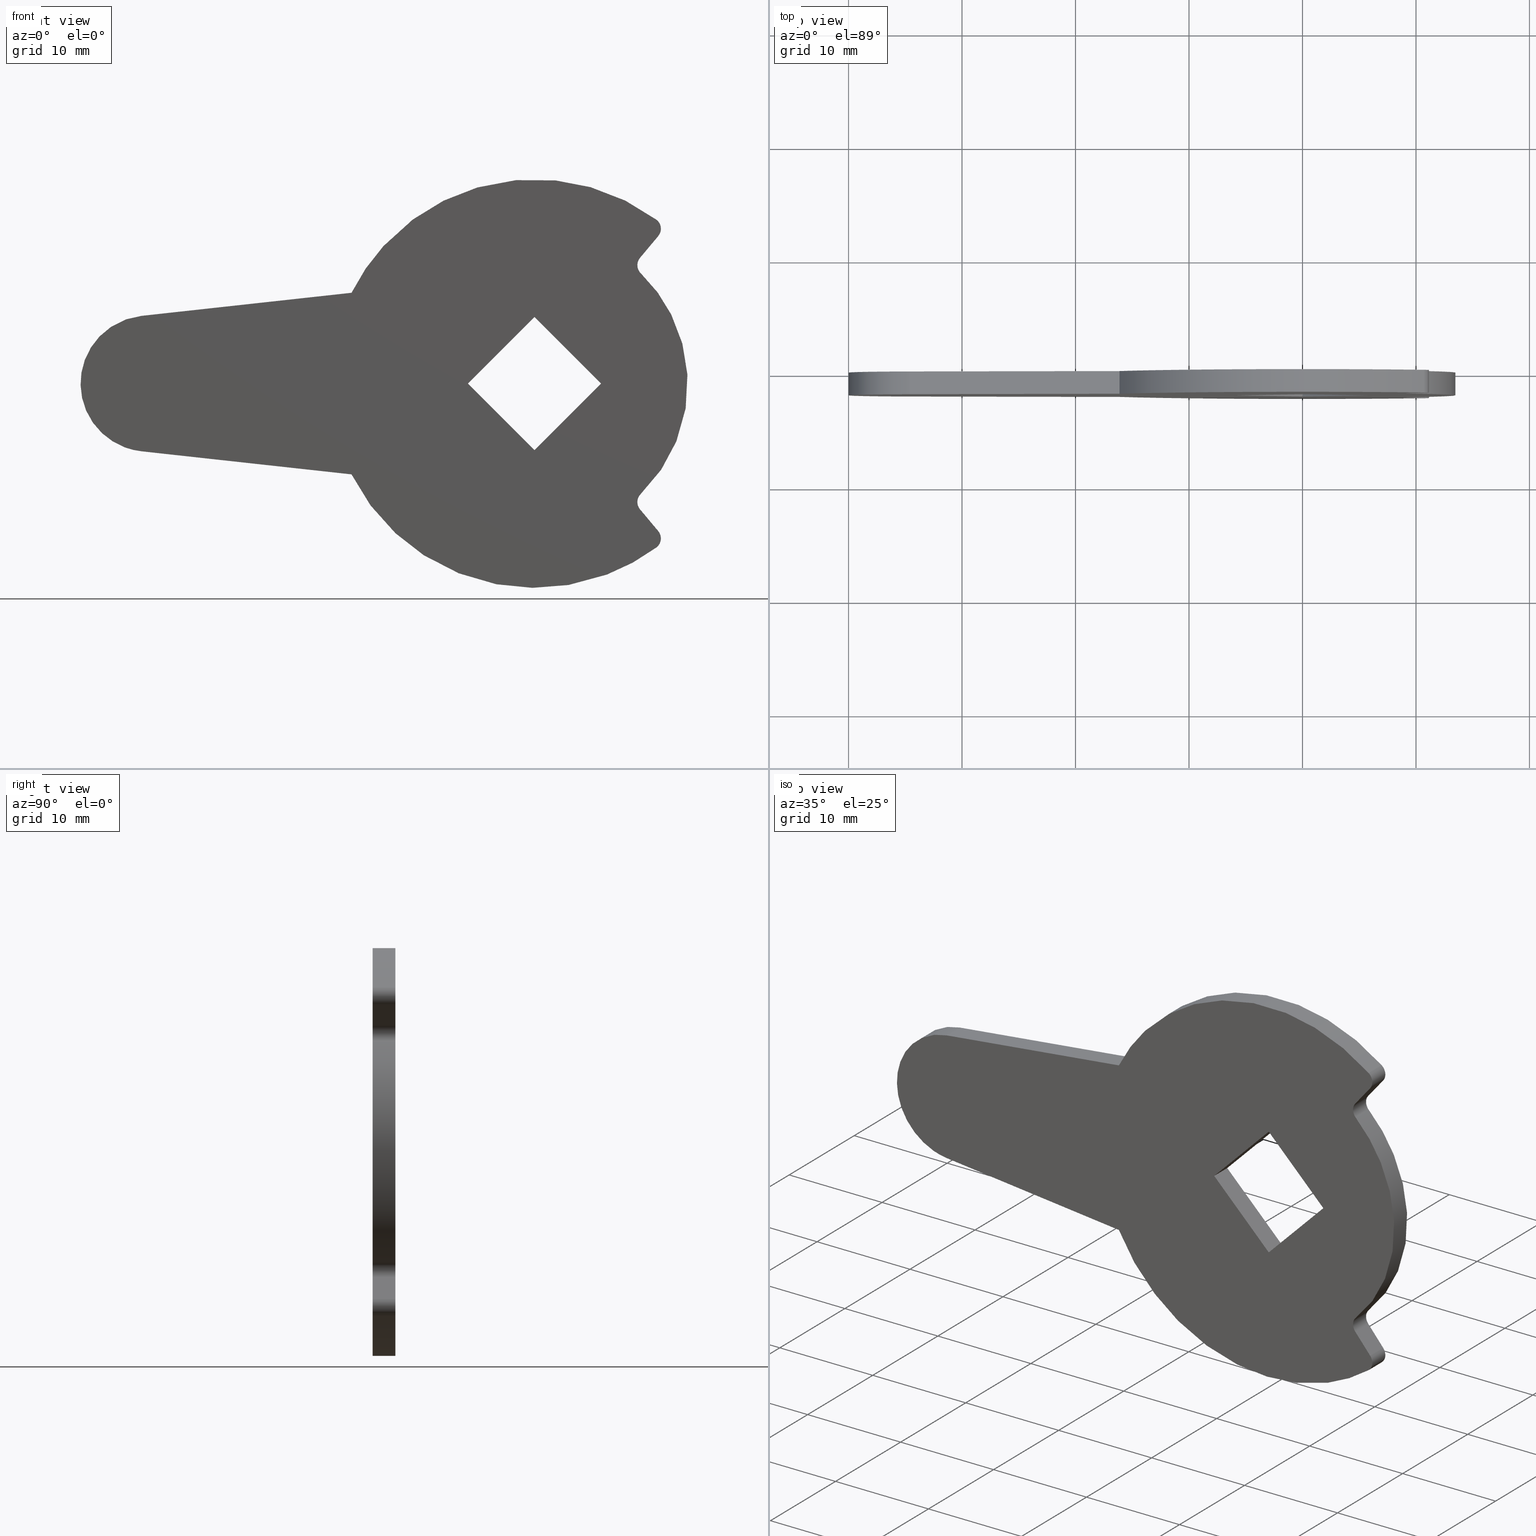
[diagram: canonical four-view strip — front | top / right | iso, engineering-drawing reading convention]
A machine part, canonical four-view strip (front | top / right | iso — engineering-drawing reading convention). The complete STEP part file that produces these views, byte-faithful:
ISO-10303-21;
HEADER;
/****************************************************************
 * Generated by software with PDE/Lib inside                    *
 * PDElib Version 4.4.1-0003, patched  Thursday August 19 11:58 *
 * International Technegroup Inc. (www.iti-oh.com)              *
 ****************************************************************/
FILE_DESCRIPTION((''),'2;1');
FILE_NAME('','2005-10-12T14:38:34',(''),(''),'','CADfix','');
FILE_SCHEMA(('AUTOMOTIVE_DESIGN'));
ENDSEC;
DATA;
#5=APPLICATION_CONTEXT('automotive design');
#6=APPLICATION_PROTOCOL_DEFINITION('Draft International Standard','automotive_design',1998,#5);
#7=PRODUCT_CONTEXT('None',#5,'mechanical');
#8=PRODUCT('cam','','None',(#7));
#9=PRODUCT_RELATED_PRODUCT_CATEGORY('part','description',(#8));
#10=PRODUCT_DEFINITION_FORMATION('None','None',#8);
#11=PRODUCT_DEFINITION_CONTEXT('part definition',#5,'design');
#12=PRODUCT_DEFINITION('None','None',#10,#11);
#18=(NAMED_UNIT(*)PLANE_ANGLE_UNIT()SI_UNIT($,.RADIAN.));
#19=DIMENSIONAL_EXPONENTS(0.0,0.0,0.0,0.0,0.0,0.0,0.0);
#20=PLANE_ANGLE_MEASURE_WITH_UNIT(PLANE_ANGLE_MEASURE(0.017453292500000),#18);
#24=(CONVERSION_BASED_UNIT('DEGREE',#20)NAMED_UNIT(#19)PLANE_ANGLE_UNIT());
#28=(NAMED_UNIT(*)SI_UNIT($,.STERADIAN.)SOLID_ANGLE_UNIT());
#32=(LENGTH_UNIT()NAMED_UNIT(*)SI_UNIT(.MILLI.,.METRE.));
#34=UNCERTAINTY_MEASURE_WITH_UNIT(LENGTH_MEASURE(0.001000000000000),#32,'DISTANCE_ACCURACY_VALUE','');
#36=(GEOMETRIC_REPRESENTATION_CONTEXT(3)GLOBAL_UNCERTAINTY_ASSIGNED_CONTEXT((#34))GLOBAL_UNIT_ASSIGNED_CONTEXT((#24,#28,#32))REPRESENTATION_CONTEXT('None','None'));
#37=AXIS2_PLACEMENT_3D('',#38,#39,#40);
#38=CARTESIAN_POINT('',(0.0,0.0,0.0));
#39=DIRECTION('',(0.0,0.0,1.0));
#40=DIRECTION('',(1.0,0.0,0.0));
#41=ADVANCED_BREP_SHAPE_REPRESENTATION('',(#37,#773),#36);
#42=PRODUCT_DEFINITION_SHAPE('','',#12);
#43=SHAPE_DEFINITION_REPRESENTATION(#42,#41);
#44=CARTESIAN_POINT('',(-42.672116572253337,0.0,19.798160946943760));
#45=CARTESIAN_POINT('',(16.172309228567329,0.0,19.798160946943760));
#46=CARTESIAN_POINT('',(-42.672116572253337,0.0,-19.798180419614450));
#47=CARTESIAN_POINT('',(16.172309228567329,0.0,-19.798180419614450));
#48=B_SPLINE_SURFACE_WITH_KNOTS('',1,1,((#44,#46),(#45,#47)),.UNSPECIFIED.,.F.,.F.,.U.,(2,2),(2,2),(0.0,58.844425800820673),(0.0,39.596341366558207),.UNSPECIFIED.);
#49=CARTESIAN_POINT('',(-16.124516390019249,0.0,7.999998199249859));
#50=VERTEX_POINT('',#49);
#51=CARTESIAN_POINT('',(-34.633145301659049,0.0,5.966479173588591));
#52=VERTEX_POINT('',#51);
#53=CARTESIAN_POINT('',(-16.124516390019249,0.0,7.999998199249859));
#54=CARTESIAN_POINT('',(-34.633145301659049,0.0,5.966479173588591));
#55=QUASI_UNIFORM_CURVE('',1,(#53,#54),.UNSPECIFIED.,.F.,.U.);
#56=EDGE_CURVE('',#50,#52,#55,.T.);
#57=ORIENTED_EDGE('',*,*,#56,.F.);
#58=CARTESIAN_POINT('',(10.739072857427560,0.0,14.445526761287001));
#59=VERTEX_POINT('',#58);
#60=CARTESIAN_POINT('',(10.739072857427580,0.0,14.445526761287010));
#61=CARTESIAN_POINT('',(3.984586888391909,0.0,19.466919151968014));
#62=CARTESIAN_POINT('',(-4.199630048120307,0.0,17.503235016676548));
#63=CARTESIAN_POINT('',(-12.383846984632507,0.0,15.539550881385084));
#64=CARTESIAN_POINT('',(-16.124516390019242,0.0,7.999998199249866));
#72=(BOUNDED_CURVE()B_SPLINE_CURVE(2,(#60,#61,#62,#63,#64),.UNSPECIFIED.,.F.,.U.)B_SPLINE_CURVE_WITH_KNOTS((3,2,3),(0.0,0.500000000000000,1.0),.UNSPECIFIED.)CURVE()GEOMETRIC_REPRESENTATION_ITEM()RATIONAL_B_SPLINE_CURVE((1.0,0.905864952288435,1.0,0.905864952288435,1.0))REPRESENTATION_ITEM(''));
#73=EDGE_CURVE('',#59,#50,#72,.T.);
#74=ORIENTED_EDGE('',*,*,#73,.F.);
#75=CARTESIAN_POINT('',(10.903888410565161,0.0,12.994704011845860));
#76=VERTEX_POINT('',#75);
#77=CARTESIAN_POINT('',(10.903888410565150,0.0,12.994704011845871));
#78=CARTESIAN_POINT('',(11.185033449875226,0.0,13.324930315240922));
#79=CARTESIAN_POINT('',(11.136079863430229,0.0,13.755854311969820));
#80=CARTESIAN_POINT('',(11.087126276985247,0.0,14.186778308698713));
#81=CARTESIAN_POINT('',(10.739072857427569,0.0,14.445526761287020));
#89=(BOUNDED_CURVE()B_SPLINE_CURVE(2,(#77,#78,#79,#80,#81),.UNSPECIFIED.,.F.,.U.)B_SPLINE_CURVE_WITH_KNOTS((3,2,3),(0.0,0.500000000000000,1.0),.UNSPECIFIED.)CURVE()GEOMETRIC_REPRESENTATION_ITEM()RATIONAL_B_SPLINE_CURVE((1.0,0.917438250673473,1.0,0.917438250673473,1.0))REPRESENTATION_ITEM(''));
#90=EDGE_CURVE('',#76,#59,#89,.T.);
#91=ORIENTED_EDGE('',*,*,#90,.F.);
#92=CARTESIAN_POINT('',(9.302911589461571,0.0,11.086695988185660));
#93=VERTEX_POINT('',#92);
#94=CARTESIAN_POINT('',(9.302911589461571,0.0,11.086695988185660));
#95=CARTESIAN_POINT('',(10.903888410565161,0.0,12.994704011845860));
#96=QUASI_UNIFORM_CURVE('',1,(#94,#95),.UNSPECIFIED.,.F.,.U.);
#97=EDGE_CURVE('',#93,#76,#96,.T.);
#98=ORIENTED_EDGE('',*,*,#97,.F.);
#99=CARTESIAN_POINT('',(9.370201414459581,0.0,9.718512161400970));
#100=VERTEX_POINT('',#99);
#101=CARTESIAN_POINT('',(9.302911589461564,0.0,11.086695988185671));
#102=CARTESIAN_POINT('',(8.693486324257897,0.0,10.370976687543207));
#103=CARTESIAN_POINT('',(9.370201414459581,0.0,9.718512161400970));
#111=(BOUNDED_CURVE()B_SPLINE_CURVE(2,(#101,#102,#103),.UNSPECIFIED.,.F.,.U.)CURVE()GEOMETRIC_REPRESENTATION_ITEM()QUASI_UNIFORM_CURVE()RATIONAL_B_SPLINE_CURVE((1.0,0.728615029618787,1.0))REPRESENTATION_ITEM(''));
#112=EDGE_CURVE('',#93,#100,#111,.T.);
#113=ORIENTED_EDGE('',*,*,#112,.T.);
#114=CARTESIAN_POINT('',(9.370232998813620,0.0,-9.718481708829620));
#115=VERTEX_POINT('',#114);
#116=CARTESIAN_POINT('',(9.370232998813620,0.0,-9.718481708829620));
#117=CARTESIAN_POINT('',(13.500002456554776,0.0,-5.736679563119544));
#118=CARTESIAN_POINT('',(13.499993134639370,0.0,0.000021937009793));
#119=CARTESIAN_POINT('',(13.499983812723970,0.0,5.736723437139132));
#120=CARTESIAN_POINT('',(9.370201414459576,0.0,9.718512161400966));
#128=(BOUNDED_CURVE()B_SPLINE_CURVE(2,(#116,#117,#118,#119,#120),.UNSPECIFIED.,.F.,.U.)B_SPLINE_CURVE_WITH_KNOTS((3,2,3),(0.0,0.500000000000000,1.0),.UNSPECIFIED.)CURVE()GEOMETRIC_REPRESENTATION_ITEM()RATIONAL_B_SPLINE_CURVE((1.0,0.920350869292249,1.0,0.920350869292249,1.0))REPRESENTATION_ITEM(''));
#129=EDGE_CURVE('',#115,#100,#128,.T.);
#130=ORIENTED_EDGE('',*,*,#129,.F.);
#131=CARTESIAN_POINT('',(9.302911589459120,0.0,-11.086695988182900));
#132=VERTEX_POINT('',#131);
#133=CARTESIAN_POINT('',(9.370232998813631,0.0,-9.718481708829630));
#134=CARTESIAN_POINT('',(8.693520258583256,0.0,-10.370948212989592));
#135=CARTESIAN_POINT('',(9.302911589459129,0.0,-11.086695988182891));
#143=(BOUNDED_CURVE()B_SPLINE_CURVE(2,(#133,#134,#135),.UNSPECIFIED.,.F.,.U.)CURVE()GEOMETRIC_REPRESENTATION_ITEM()QUASI_UNIFORM_CURVE()RATIONAL_B_SPLINE_CURVE((1.0,0.728632280257199,1.0))REPRESENTATION_ITEM(''));
#144=EDGE_CURVE('',#115,#132,#143,.T.);
#145=ORIENTED_EDGE('',*,*,#144,.T.);
#146=CARTESIAN_POINT('',(10.903888410552099,0.0,-12.994704011830500));
#147=VERTEX_POINT('',#146);
#148=CARTESIAN_POINT('',(10.903888410552099,0.0,-12.994704011830500));
#149=CARTESIAN_POINT('',(9.302911589459120,0.0,-11.086695988182900));
#150=QUASI_UNIFORM_CURVE('',1,(#148,#149),.UNSPECIFIED.,.F.,.U.);
#151=EDGE_CURVE('',#147,#132,#150,.T.);
#152=ORIENTED_EDGE('',*,*,#151,.F.);
#153=CARTESIAN_POINT('',(10.739112776660621,0.0,-14.445497084531420));
#154=VERTEX_POINT('',#153);
#155=CARTESIAN_POINT('',(10.739112776660621,0.0,-14.445497084531430));
#156=CARTESIAN_POINT('',(11.087159702476013,0.0,-14.186750629950188));
#157=CARTESIAN_POINT('',(11.136101848850220,0.0,-13.755831778382770));
#158=CARTESIAN_POINT('',(11.185043995224420,0.0,-13.324912926815346));
#159=CARTESIAN_POINT('',(10.903888410552110,0.0,-12.994704011830491));
#167=(BOUNDED_CURVE()B_SPLINE_CURVE(2,(#155,#156,#157,#158,#159),.UNSPECIFIED.,.F.,.U.)B_SPLINE_CURVE_WITH_KNOTS((3,2,3),(0.0,0.500000000000000,1.0),.UNSPECIFIED.)CURVE()GEOMETRIC_REPRESENTATION_ITEM()RATIONAL_B_SPLINE_CURVE((1.0,0.917434344498665,1.0,0.917434344498665,1.0))REPRESENTATION_ITEM(''));
#168=EDGE_CURVE('',#154,#147,#167,.T.);
#169=ORIENTED_EDGE('',*,*,#168,.F.);
#170=CARTESIAN_POINT('',(-16.124516390019249,0.0,-7.999998199249848));
#171=VERTEX_POINT('',#170);
#172=CARTESIAN_POINT('',(-16.124516390019249,0.0,-7.999998199249840));
#173=CARTESIAN_POINT('',(-12.383854566696858,0.0,-15.539582422374766));
#174=CARTESIAN_POINT('',(-4.199610718877589,0.0,-17.503261055320671));
#175=CARTESIAN_POINT('',(3.984633128941676,0.0,-19.466939688266585));
#176=CARTESIAN_POINT('',(10.739112776660621,0.0,-14.445497084531439));
#184=(BOUNDED_CURVE()B_SPLINE_CURVE(2,(#172,#173,#174,#175,#176),.UNSPECIFIED.,.F.,.U.)B_SPLINE_CURVE_WITH_KNOTS((3,2,3),(0.0,0.500000000000000,1.0),.UNSPECIFIED.)CURVE()GEOMETRIC_REPRESENTATION_ITEM()RATIONAL_B_SPLINE_CURVE((1.0,0.905864136016763,1.0,0.905864136016763,1.0))REPRESENTATION_ITEM(''));
#185=EDGE_CURVE('',#171,#154,#184,.T.);
#186=ORIENTED_EDGE('',*,*,#185,.F.);
#187=CARTESIAN_POINT('',(-34.633145301716652,0.0,-5.966479173582481));
#188=VERTEX_POINT('',#187);
#189=CARTESIAN_POINT('',(-34.633145301716652,0.0,-5.966479173582481));
#190=CARTESIAN_POINT('',(-16.124516390019249,0.0,-7.999998199249848));
#191=QUASI_UNIFORM_CURVE('',1,(#189,#190),.UNSPECIFIED.,.F.,.U.);
#192=EDGE_CURVE('',#188,#171,#191,.T.);
#193=ORIENTED_EDGE('',*,*,#192,.F.);
#194=CARTESIAN_POINT('',(-34.633145301659049,0.0,5.966479173588592));
#195=CARTESIAN_POINT('',(-39.999799999973945,0.0,5.396805595601411));
#196=CARTESIAN_POINT('',(-39.999799999999993,0.0,2.896253E-011));
#197=CARTESIAN_POINT('',(-39.999800000026049,0.0,-5.396805595543485));
#198=CARTESIAN_POINT('',(-34.633145301716652,0.0,-5.966479173582478));
#206=(BOUNDED_CURVE()B_SPLINE_CURVE(2,(#194,#195,#196,#197,#198),.UNSPECIFIED.,.F.,.U.)B_SPLINE_CURVE_WITH_KNOTS((3,2,3),(0.0,0.500000000000000,1.0),.UNSPECIFIED.)CURVE()GEOMETRIC_REPRESENTATION_ITEM()RATIONAL_B_SPLINE_CURVE((1.0,0.743490938169830,1.0,0.743490938169830,1.0))REPRESENTATION_ITEM(''));
#207=EDGE_CURVE('',#52,#188,#206,.T.);
#208=ORIENTED_EDGE('',*,*,#207,.F.);
#209=EDGE_LOOP('',(#57,#74,#91,#98,#113,#130,#145,#152,#169,#186,#193,#208));
#210=FACE_OUTER_BOUND('',#209,.T.);
#211=CARTESIAN_POINT('',(5.868999999999900,0.0,0.0));
#212=VERTEX_POINT('',#211);
#213=CARTESIAN_POINT('',(0.000100000000003,0.0,-5.869000000000000));
#214=VERTEX_POINT('',#213);
#215=CARTESIAN_POINT('',(5.868999999999900,0.0,0.0));
#216=CARTESIAN_POINT('',(0.000100000000003,0.0,-5.869000000000000));
#217=QUASI_UNIFORM_CURVE('',1,(#215,#216),.UNSPECIFIED.,.F.,.U.);
#218=EDGE_CURVE('',#212,#214,#217,.T.);
#219=ORIENTED_EDGE('',*,*,#218,.F.);
#220=CARTESIAN_POINT('',(0.000100000000003,0.0,5.868999999999900));
#221=VERTEX_POINT('',#220);
#222=CARTESIAN_POINT('',(0.000100000000003,0.0,5.868999999999900));
#223=CARTESIAN_POINT('',(5.868999999999900,0.0,0.0));
#224=QUASI_UNIFORM_CURVE('',1,(#222,#223),.UNSPECIFIED.,.F.,.U.);
#225=EDGE_CURVE('',#221,#212,#224,.T.);
#226=ORIENTED_EDGE('',*,*,#225,.F.);
#227=CARTESIAN_POINT('',(-5.868900000000000,0.0,0.0));
#228=VERTEX_POINT('',#227);
#229=CARTESIAN_POINT('',(-5.868900000000000,0.0,0.0));
#230=CARTESIAN_POINT('',(0.000100000000003,0.0,5.868999999999900));
#231=QUASI_UNIFORM_CURVE('',1,(#229,#230),.UNSPECIFIED.,.F.,.U.);
#232=EDGE_CURVE('',#228,#221,#231,.T.);
#233=ORIENTED_EDGE('',*,*,#232,.F.);
#234=CARTESIAN_POINT('',(0.000100000000003,0.0,-5.869000000000000));
#235=CARTESIAN_POINT('',(-5.868900000000000,0.0,0.0));
#236=QUASI_UNIFORM_CURVE('',1,(#234,#235),.UNSPECIFIED.,.F.,.U.);
#237=EDGE_CURVE('',#214,#228,#236,.T.);
#238=ORIENTED_EDGE('',*,*,#237,.F.);
#239=EDGE_LOOP('',(#219,#226,#233,#238));
#240=FACE_BOUND('',#239,.T.);
#241=ADVANCED_FACE('',(#210,#240),#48,.T.);
#242=CARTESIAN_POINT('',(-42.672116572253337,-2.0,19.798160946943760));
#243=CARTESIAN_POINT('',(16.172309228567329,-2.0,19.798160946943760));
#244=CARTESIAN_POINT('',(-42.672116572253337,-2.0,-19.798180419614450));
#245=CARTESIAN_POINT('',(16.172309228567329,-2.0,-19.798180419614450));
#246=B_SPLINE_SURFACE_WITH_KNOTS('',1,1,((#242,#244),(#243,#245)),.UNSPECIFIED.,.F.,.F.,.U.,(2,2),(2,2),(0.0,58.844425800820673),(0.0,39.596341366558207),.UNSPECIFIED.);
#247=CARTESIAN_POINT('',(-16.124516390019249,-2.0,7.999998199249859));
#248=VERTEX_POINT('',#247);
#249=CARTESIAN_POINT('',(-34.633145301659049,-2.0,5.966479173588591));
#250=VERTEX_POINT('',#249);
#251=CARTESIAN_POINT('',(-16.124516390019249,-2.0,7.999998199249859));
#252=CARTESIAN_POINT('',(-34.633145301659049,-2.0,5.966479173588591));
#253=QUASI_UNIFORM_CURVE('',1,(#251,#252),.UNSPECIFIED.,.F.,.U.);
#254=EDGE_CURVE('',#248,#250,#253,.T.);
#255=ORIENTED_EDGE('',*,*,#254,.T.);
#256=CARTESIAN_POINT('',(-34.633145301716652,-2.0,-5.966479173582481));
#257=VERTEX_POINT('',#256);
#258=CARTESIAN_POINT('',(-34.633145301659049,-2.0,5.966479173588592));
#259=CARTESIAN_POINT('',(-39.999799999973945,-2.000000000000000,5.396805595601411));
#260=CARTESIAN_POINT('',(-39.999799999999993,-2.0,2.896253E-011));
#261=CARTESIAN_POINT('',(-39.999800000026049,-2.000000000000000,-5.396805595543485));
#262=CARTESIAN_POINT('',(-34.633145301716652,-2.0,-5.966479173582478));
#270=(BOUNDED_CURVE()B_SPLINE_CURVE(2,(#258,#259,#260,#261,#262),.UNSPECIFIED.,.F.,.U.)B_SPLINE_CURVE_WITH_KNOTS((3,2,3),(0.0,0.500000000000000,1.0),.UNSPECIFIED.)CURVE()GEOMETRIC_REPRESENTATION_ITEM()RATIONAL_B_SPLINE_CURVE((1.0,0.743490938169830,1.0,0.743490938169830,1.0))REPRESENTATION_ITEM(''));
#271=EDGE_CURVE('',#250,#257,#270,.T.);
#272=ORIENTED_EDGE('',*,*,#271,.T.);
#273=CARTESIAN_POINT('',(-16.124516390019249,-2.0,-7.999998199249848));
#274=VERTEX_POINT('',#273);
#275=CARTESIAN_POINT('',(-34.633145301716652,-2.0,-5.966479173582481));
#276=CARTESIAN_POINT('',(-16.124516390019249,-2.0,-7.999998199249848));
#277=QUASI_UNIFORM_CURVE('',1,(#275,#276),.UNSPECIFIED.,.F.,.U.);
#278=EDGE_CURVE('',#257,#274,#277,.T.);
#279=ORIENTED_EDGE('',*,*,#278,.T.);
#280=CARTESIAN_POINT('',(10.739112776660621,-2.0,-14.445497084531420));
#281=VERTEX_POINT('',#280);
#282=CARTESIAN_POINT('',(-16.124516390019249,-2.0,-7.999998199249840));
#283=CARTESIAN_POINT('',(-12.383854566696858,-2.000000000000000,-15.539582422374766));
#284=CARTESIAN_POINT('',(-4.199610718877589,-2.0,-17.503261055320671));
#285=CARTESIAN_POINT('',(3.984633128941676,-2.000000000000000,-19.466939688266585));
#286=CARTESIAN_POINT('',(10.739112776660621,-2.0,-14.445497084531439));
#294=(BOUNDED_CURVE()B_SPLINE_CURVE(2,(#282,#283,#284,#285,#286),.UNSPECIFIED.,.F.,.U.)B_SPLINE_CURVE_WITH_KNOTS((3,2,3),(0.0,0.500000000000000,1.0),.UNSPECIFIED.)CURVE()GEOMETRIC_REPRESENTATION_ITEM()RATIONAL_B_SPLINE_CURVE((1.0,0.905864136016763,1.0,0.905864136016763,1.0))REPRESENTATION_ITEM(''));
#295=EDGE_CURVE('',#274,#281,#294,.T.);
#296=ORIENTED_EDGE('',*,*,#295,.T.);
#297=CARTESIAN_POINT('',(10.903888410552099,-2.0,-12.994704011830500));
#298=VERTEX_POINT('',#297);
#299=CARTESIAN_POINT('',(10.739112776660621,-2.0,-14.445497084531430));
#300=CARTESIAN_POINT('',(11.087159702476013,-2.0,-14.186750629950188));
#301=CARTESIAN_POINT('',(11.136101848850220,-2.0,-13.755831778382770));
#302=CARTESIAN_POINT('',(11.185043995224420,-2.0,-13.324912926815346));
#303=CARTESIAN_POINT('',(10.903888410552110,-2.0,-12.994704011830491));
#311=(BOUNDED_CURVE()B_SPLINE_CURVE(2,(#299,#300,#301,#302,#303),.UNSPECIFIED.,.F.,.U.)B_SPLINE_CURVE_WITH_KNOTS((3,2,3),(0.0,0.500000000000000,1.0),.UNSPECIFIED.)CURVE()GEOMETRIC_REPRESENTATION_ITEM()RATIONAL_B_SPLINE_CURVE((1.0,0.917434344498665,1.0,0.917434344498665,1.0))REPRESENTATION_ITEM(''));
#312=EDGE_CURVE('',#281,#298,#311,.T.);
#313=ORIENTED_EDGE('',*,*,#312,.T.);
#314=CARTESIAN_POINT('',(9.302911589459120,-2.0,-11.086695988182900));
#315=VERTEX_POINT('',#314);
#316=CARTESIAN_POINT('',(10.903888410552099,-2.0,-12.994704011830500));
#317=CARTESIAN_POINT('',(9.302911589459120,-2.0,-11.086695988182900));
#318=QUASI_UNIFORM_CURVE('',1,(#316,#317),.UNSPECIFIED.,.F.,.U.);
#319=EDGE_CURVE('',#298,#315,#318,.T.);
#320=ORIENTED_EDGE('',*,*,#319,.T.);
#321=CARTESIAN_POINT('',(9.370232998813620,-2.0,-9.718481708829620));
#322=VERTEX_POINT('',#321);
#323=CARTESIAN_POINT('',(9.370232998813631,-2.0,-9.718481708829630));
#324=CARTESIAN_POINT('',(8.693520258583256,-2.000000000000000,-10.370948212989592));
#325=CARTESIAN_POINT('',(9.302911589459129,-2.0,-11.086695988182891));
#333=(BOUNDED_CURVE()B_SPLINE_CURVE(2,(#323,#324,#325),.UNSPECIFIED.,.F.,.U.)CURVE()GEOMETRIC_REPRESENTATION_ITEM()QUASI_UNIFORM_CURVE()RATIONAL_B_SPLINE_CURVE((1.0,0.728632280257199,1.0))REPRESENTATION_ITEM(''));
#334=EDGE_CURVE('',#322,#315,#333,.T.);
#335=ORIENTED_EDGE('',*,*,#334,.F.);
#336=CARTESIAN_POINT('',(9.370201414459581,-2.0,9.718512161400970));
#337=VERTEX_POINT('',#336);
#338=CARTESIAN_POINT('',(9.370232998813620,-2.0,-9.718481708829620));
#339=CARTESIAN_POINT('',(13.500002456554776,-2.000000000000000,-5.736679563119544));
#340=CARTESIAN_POINT('',(13.499993134639370,-2.0,0.000021937009793));
#341=CARTESIAN_POINT('',(13.499983812723970,-2.000000000000000,5.736723437139132));
#342=CARTESIAN_POINT('',(9.370201414459576,-2.0,9.718512161400966));
#350=(BOUNDED_CURVE()B_SPLINE_CURVE(2,(#338,#339,#340,#341,#342),.UNSPECIFIED.,.F.,.U.)B_SPLINE_CURVE_WITH_KNOTS((3,2,3),(0.0,0.500000000000000,1.0),.UNSPECIFIED.)CURVE()GEOMETRIC_REPRESENTATION_ITEM()RATIONAL_B_SPLINE_CURVE((1.0,0.920350869292249,1.0,0.920350869292249,1.0))REPRESENTATION_ITEM(''));
#351=EDGE_CURVE('',#322,#337,#350,.T.);
#352=ORIENTED_EDGE('',*,*,#351,.T.);
#353=CARTESIAN_POINT('',(9.302911589461571,-2.0,11.086695988185660));
#354=VERTEX_POINT('',#353);
#355=CARTESIAN_POINT('',(9.302911589461564,-2.0,11.086695988185671));
#356=CARTESIAN_POINT('',(8.693486324257897,-2.000000000000000,10.370976687543207));
#357=CARTESIAN_POINT('',(9.370201414459581,-2.0,9.718512161400970));
#365=(BOUNDED_CURVE()B_SPLINE_CURVE(2,(#355,#356,#357),.UNSPECIFIED.,.F.,.U.)CURVE()GEOMETRIC_REPRESENTATION_ITEM()QUASI_UNIFORM_CURVE()RATIONAL_B_SPLINE_CURVE((1.0,0.728615029618787,1.0))REPRESENTATION_ITEM(''));
#366=EDGE_CURVE('',#354,#337,#365,.T.);
#367=ORIENTED_EDGE('',*,*,#366,.F.);
#368=CARTESIAN_POINT('',(10.903888410565161,-2.0,12.994704011845860));
#369=VERTEX_POINT('',#368);
#370=CARTESIAN_POINT('',(9.302911589461571,-2.0,11.086695988185660));
#371=CARTESIAN_POINT('',(10.903888410565161,-2.0,12.994704011845860));
#372=QUASI_UNIFORM_CURVE('',1,(#370,#371),.UNSPECIFIED.,.F.,.U.);
#373=EDGE_CURVE('',#354,#369,#372,.T.);
#374=ORIENTED_EDGE('',*,*,#373,.T.);
#375=CARTESIAN_POINT('',(10.739072857427560,-2.0,14.445526761287001));
#376=VERTEX_POINT('',#375);
#377=CARTESIAN_POINT('',(10.903888410565150,-2.0,12.994704011845871));
#378=CARTESIAN_POINT('',(11.185033449875226,-2.000000000000000,13.324930315240922));
#379=CARTESIAN_POINT('',(11.136079863430229,-2.0,13.755854311969820));
#380=CARTESIAN_POINT('',(11.087126276985247,-2.000000000000000,14.186778308698713));
#381=CARTESIAN_POINT('',(10.739072857427569,-2.0,14.445526761287020));
#389=(BOUNDED_CURVE()B_SPLINE_CURVE(2,(#377,#378,#379,#380,#381),.UNSPECIFIED.,.F.,.U.)B_SPLINE_CURVE_WITH_KNOTS((3,2,3),(0.0,0.500000000000000,1.0),.UNSPECIFIED.)CURVE()GEOMETRIC_REPRESENTATION_ITEM()RATIONAL_B_SPLINE_CURVE((1.0,0.917438250673473,1.0,0.917438250673473,1.0))REPRESENTATION_ITEM(''));
#390=EDGE_CURVE('',#369,#376,#389,.T.);
#391=ORIENTED_EDGE('',*,*,#390,.T.);
#392=CARTESIAN_POINT('',(10.739072857427580,-2.0,14.445526761287010));
#393=CARTESIAN_POINT('',(3.984586888391909,-2.0,19.466919151968014));
#394=CARTESIAN_POINT('',(-4.199630048120307,-2.0,17.503235016676548));
#395=CARTESIAN_POINT('',(-12.383846984632507,-2.0,15.539550881385084));
#396=CARTESIAN_POINT('',(-16.124516390019242,-2.0,7.999998199249866));
#404=(BOUNDED_CURVE()B_SPLINE_CURVE(2,(#392,#393,#394,#395,#396),.UNSPECIFIED.,.F.,.U.)B_SPLINE_CURVE_WITH_KNOTS((3,2,3),(0.0,0.500000000000000,1.0),.UNSPECIFIED.)CURVE()GEOMETRIC_REPRESENTATION_ITEM()RATIONAL_B_SPLINE_CURVE((1.0,0.905864952288435,1.0,0.905864952288435,1.0))REPRESENTATION_ITEM(''));
#405=EDGE_CURVE('',#376,#248,#404,.T.);
#406=ORIENTED_EDGE('',*,*,#405,.T.);
#407=EDGE_LOOP('',(#255,#272,#279,#296,#313,#320,#335,#352,#367,#374,#391,#406));
#408=FACE_OUTER_BOUND('',#407,.T.);
#409=CARTESIAN_POINT('',(5.868999999999900,-2.0,0.0));
#410=VERTEX_POINT('',#409);
#411=CARTESIAN_POINT('',(0.000100000000003,-2.0,-5.869000000000000));
#412=VERTEX_POINT('',#411);
#413=CARTESIAN_POINT('',(5.868999999999900,-2.0,0.0));
#414=CARTESIAN_POINT('',(0.000100000000003,-2.0,-5.869000000000000));
#415=QUASI_UNIFORM_CURVE('',1,(#413,#414),.UNSPECIFIED.,.F.,.U.);
#416=EDGE_CURVE('',#410,#412,#415,.T.);
#417=ORIENTED_EDGE('',*,*,#416,.T.);
#418=CARTESIAN_POINT('',(-5.868900000000000,-2.0,0.0));
#419=VERTEX_POINT('',#418);
#420=CARTESIAN_POINT('',(0.000100000000003,-2.0,-5.869000000000000));
#421=CARTESIAN_POINT('',(-5.868900000000000,-2.0,0.0));
#422=QUASI_UNIFORM_CURVE('',1,(#420,#421),.UNSPECIFIED.,.F.,.U.);
#423=EDGE_CURVE('',#412,#419,#422,.T.);
#424=ORIENTED_EDGE('',*,*,#423,.T.);
#425=CARTESIAN_POINT('',(0.000100000000003,-2.0,5.868999999999900));
#426=VERTEX_POINT('',#425);
#427=CARTESIAN_POINT('',(-5.868900000000000,-2.0,0.0));
#428=CARTESIAN_POINT('',(0.000100000000003,-2.0,5.868999999999900));
#429=QUASI_UNIFORM_CURVE('',1,(#427,#428),.UNSPECIFIED.,.F.,.U.);
#430=EDGE_CURVE('',#419,#426,#429,.T.);
#431=ORIENTED_EDGE('',*,*,#430,.T.);
#432=CARTESIAN_POINT('',(0.000100000000003,-2.0,5.868999999999900));
#433=CARTESIAN_POINT('',(5.868999999999900,-2.0,0.0));
#434=QUASI_UNIFORM_CURVE('',1,(#432,#433),.UNSPECIFIED.,.F.,.U.);
#435=EDGE_CURVE('',#426,#410,#434,.T.);
#436=ORIENTED_EDGE('',*,*,#435,.T.);
#437=EDGE_LOOP('',(#417,#424,#431,#436));
#438=FACE_BOUND('',#437,.T.);
#439=ADVANCED_FACE('',(#408,#438),#246,.F.);
#440=CARTESIAN_POINT('',(-0.293051543624925,-2.099899996123612,6.162156538624635));
#441=CARTESIAN_POINT('',(6.162151701040995,-2.099899996123612,-0.293156696043581));
#442=CARTESIAN_POINT('',(-0.293051543624925,0.099900049767792,6.162156538624635));
#443=CARTESIAN_POINT('',(6.162151701040995,0.099900049767792,-0.293156696043581));
#444=B_SPLINE_SURFACE_WITH_KNOTS('',1,1,((#440,#442),(#441,#443)),.UNSPECIFIED.,.F.,.F.,.U.,(2,2),(2,2),(0.0,9.129113751489134),(0.0,2.199800045891404),.UNSPECIFIED.);
#445=ORIENTED_EDGE('',*,*,#225,.T.);
#446=CARTESIAN_POINT('',(5.868999999999900,-2.0,0.0));
#447=CARTESIAN_POINT('',(5.868999999999900,0.0,0.0));
#448=QUASI_UNIFORM_CURVE('',1,(#446,#447),.UNSPECIFIED.,.F.,.U.);
#449=EDGE_CURVE('',#410,#212,#448,.T.);
#450=ORIENTED_EDGE('',*,*,#449,.F.);
#451=ORIENTED_EDGE('',*,*,#435,.F.);
#452=CARTESIAN_POINT('',(0.000100000000003,-2.0,5.868999999999900));
#453=CARTESIAN_POINT('',(0.000100000000003,0.0,5.868999999999900));
#454=QUASI_UNIFORM_CURVE('',1,(#452,#453),.UNSPECIFIED.,.F.,.U.);
#455=EDGE_CURVE('',#426,#221,#454,.T.);
#456=ORIENTED_EDGE('',*,*,#455,.T.);
#457=EDGE_LOOP('',(#445,#450,#451,#456));
#458=FACE_OUTER_BOUND('',#457,.T.);
#459=ADVANCED_FACE('',(#458),#444,.F.);
#460=CARTESIAN_POINT('',(11.300398543710569,-2.050000000000000,14.010780340803580));
#461=CARTESIAN_POINT('',(11.300398543710569,0.051250000000000,14.010780340803580));
#462=CARTESIAN_POINT('',(-7.583697467030995,-2.050000000000001,29.241699454702925));
#463=CARTESIAN_POINT('',(-7.583697467030995,0.051250000000000,29.241699454702925));
#464=CARTESIAN_POINT('',(-16.685314106339867,-2.050000000000000,6.752800999062512));
#465=CARTESIAN_POINT('',(-16.685314106339867,0.051250000000000,6.752800999062512));
#473=(BOUNDED_SURFACE()B_SPLINE_SURFACE(1,2,((#460,#462,#464),(#461,#463,#465)),.UNSPECIFIED.,.F.,.F.,.U.)B_SPLINE_SURFACE_WITH_KNOTS((2,2),(3,3),(0.0,2.101250000000000),(0.0,36.233484291504631),.UNSPECIFIED.)GEOMETRIC_REPRESENTATION_ITEM()RATIONAL_B_SPLINE_SURFACE(((1.0,0.595465199171336,0.998717212262314),(1.0,0.595465199171336,0.998717212262314)))REPRESENTATION_ITEM('')SURFACE());
#474=ORIENTED_EDGE('',*,*,#73,.T.);
#475=CARTESIAN_POINT('',(-16.124516390019249,-2.0,7.999998199249859));
#476=CARTESIAN_POINT('',(-16.124516390019249,0.0,7.999998199249859));
#477=QUASI_UNIFORM_CURVE('',1,(#475,#476),.UNSPECIFIED.,.F.,.U.);
#478=EDGE_CURVE('',#248,#50,#477,.T.);
#479=ORIENTED_EDGE('',*,*,#478,.F.);
#480=ORIENTED_EDGE('',*,*,#405,.F.);
#481=CARTESIAN_POINT('',(10.739072857427560,-2.0,14.445526761287001));
#482=CARTESIAN_POINT('',(10.739072857427560,0.0,14.445526761287001));
#483=QUASI_UNIFORM_CURVE('',1,(#481,#482),.UNSPECIFIED.,.F.,.U.);
#484=EDGE_CURVE('',#376,#59,#483,.T.);
#485=ORIENTED_EDGE('',*,*,#484,.T.);
#486=EDGE_LOOP('',(#474,#479,#480,#485));
#487=FACE_OUTER_BOUND('',#486,.T.);
#488=ADVANCED_FACE('',(#487),#473,.T.);
#489=CARTESIAN_POINT('',(10.886657705025250,-2.050000000000000,12.974993859780611));
#490=CARTESIAN_POINT('',(10.886657705025250,0.051250000000000,12.974993859780611));
#491=CARTESIAN_POINT('',(11.655083041900690,-2.050000000000000,13.831114130284222));
#492=CARTESIAN_POINT('',(11.655083041900690,0.051250000000000,13.831114130284222));
#493=CARTESIAN_POINT('',(10.700350338029340,-2.050000000000000,14.472912291763199));
#494=CARTESIAN_POINT('',(10.700350338029340,0.051250000000000,14.472912291763199));
#502=(BOUNDED_SURFACE()B_SPLINE_SURFACE(1,2,((#489,#491,#493),(#490,#492,#494)),.UNSPECIFIED.,.F.,.F.,.U.)B_SPLINE_SURFACE_WITH_KNOTS((2,2),(3,3),(0.0,2.101250000000000),(0.0,1.0),.UNSPECIFIED.)GEOMETRIC_REPRESENTATION_ITEM()RATIONAL_B_SPLINE_SURFACE(((1.0,0.656059028990507,1.0),(1.0,0.656059028990507,1.0)))REPRESENTATION_ITEM('')SURFACE());
#503=ORIENTED_EDGE('',*,*,#90,.T.);
#504=ORIENTED_EDGE('',*,*,#484,.F.);
#505=ORIENTED_EDGE('',*,*,#390,.F.);
#506=CARTESIAN_POINT('',(10.903888410565161,-2.0,12.994704011845860));
#507=CARTESIAN_POINT('',(10.903888410565161,0.0,12.994704011845860));
#508=QUASI_UNIFORM_CURVE('',1,(#506,#507),.UNSPECIFIED.,.F.,.U.);
#509=EDGE_CURVE('',#369,#76,#508,.T.);
#510=ORIENTED_EDGE('',*,*,#509,.T.);
#511=EDGE_LOOP('',(#503,#504,#505,#510));
#512=FACE_OUTER_BOUND('',#511,.T.);
#513=ADVANCED_FACE('',(#512),#502,.T.);
#514=CARTESIAN_POINT('',(9.222942698737874,-2.099899996123612,10.991390870002350));
#515=CARTESIAN_POINT('',(10.983857487368891,-2.099899996123612,13.090009351795141));
#516=CARTESIAN_POINT('',(9.222942698737874,0.099900049767792,10.991390870002350));
#517=CARTESIAN_POINT('',(10.983857487368891,0.099900049767792,13.090009351795141));
#518=B_SPLINE_SURFACE_WITH_KNOTS('',1,1,((#514,#516),(#515,#517)),.UNSPECIFIED.,.F.,.F.,.U.,(2,2),(2,2),(0.0,2.739529234182715),(0.0,2.199800045891404),.UNSPECIFIED.);
#519=ORIENTED_EDGE('',*,*,#97,.T.);
#520=ORIENTED_EDGE('',*,*,#509,.F.);
#521=ORIENTED_EDGE('',*,*,#373,.F.);
#522=CARTESIAN_POINT('',(9.302911589461571,-2.0,11.086695988185660));
#523=CARTESIAN_POINT('',(9.302911589461571,0.0,11.086695988185660));
#524=QUASI_UNIFORM_CURVE('',1,(#522,#523),.UNSPECIFIED.,.F.,.U.);
#525=EDGE_CURVE('',#354,#93,#524,.T.);
#526=ORIENTED_EDGE('',*,*,#525,.T.);
#527=EDGE_LOOP('',(#519,#520,#521,#526));
#528=FACE_OUTER_BOUND('',#527,.T.);
#529=ADVANCED_FACE('',(#528),#518,.F.);
#530=CARTESIAN_POINT('',(9.326481540898993,-2.050000000000000,11.113398555782741));
#531=CARTESIAN_POINT('',(9.326481540898993,0.051250000000000,11.113398555782741));
#532=CARTESIAN_POINT('',(8.622586492571386,-2.049999999999999,10.344013373337251));
#533=CARTESIAN_POINT('',(8.622586492571386,0.051250000000000,10.344013373337251));
#534=CARTESIAN_POINT('',(9.420780544745993,-2.050000000000000,9.672963410145330));
#535=CARTESIAN_POINT('',(9.420780544745993,0.051250000000000,9.672963410145330));
#543=(BOUNDED_SURFACE()B_SPLINE_SURFACE(1,2,((#530,#532,#534),(#531,#533,#535)),.UNSPECIFIED.,.F.,.F.,.U.)B_SPLINE_SURFACE_WITH_KNOTS((2,2),(3,3),(0.0,2.101250000000000),(0.0,0.992805670947675),.UNSPECIFIED.)GEOMETRIC_REPRESENTATION_ITEM()RATIONAL_B_SPLINE_SURFACE(((1.0,0.690596655423865,0.995548101058459),(1.0,0.690596655423865,0.995548101058459)))REPRESENTATION_ITEM('')SURFACE());
#544=ORIENTED_EDGE('',*,*,#112,.F.);
#545=ORIENTED_EDGE('',*,*,#525,.F.);
#546=ORIENTED_EDGE('',*,*,#366,.T.);
#547=CARTESIAN_POINT('',(9.370201414459581,-2.0,9.718512161400970));
#548=CARTESIAN_POINT('',(9.370201414459581,0.0,9.718512161400970));
#549=QUASI_UNIFORM_CURVE('',1,(#547,#548),.UNSPECIFIED.,.F.,.U.);
#550=EDGE_CURVE('',#337,#100,#549,.T.);
#551=ORIENTED_EDGE('',*,*,#550,.T.);
#552=EDGE_LOOP('',(#544,#545,#546,#551));
#553=FACE_OUTER_BOUND('',#552,.T.);
#554=ADVANCED_FACE('',(#553),#543,.F.);
#555=CARTESIAN_POINT('',(9.112621846623791,-2.050000000000000,-9.960436605654852));
#556=CARTESIAN_POINT('',(9.112621846623791,0.051250000000000,-9.960436605654852));
#557=CARTESIAN_POINT('',(20.370847427688069,-2.050000000000000,0.339555041069889));
#558=CARTESIAN_POINT('',(20.370847427688069,0.051250000000000,0.339555041069889));
#559=CARTESIAN_POINT('',(8.775597797322327,-2.050000000000000,10.258610296800279));
#560=CARTESIAN_POINT('',(8.775597797322327,0.051250000000000,10.258610296800279));
#568=(BOUNDED_SURFACE()B_SPLINE_SURFACE(1,2,((#555,#557,#559),(#556,#558,#560)),.UNSPECIFIED.,.F.,.F.,.U.)B_SPLINE_SURFACE_WITH_KNOTS((2,2),(3,3),(0.0,2.101250000000000),(0.0,24.325287783755869),.UNSPECIFIED.)GEOMETRIC_REPRESENTATION_ITEM()RATIONAL_B_SPLINE_SURFACE(((1.0,0.662620048215737,1.0),(1.0,0.662620048215737,1.0)))REPRESENTATION_ITEM('')SURFACE());
#569=ORIENTED_EDGE('',*,*,#129,.T.);
#570=ORIENTED_EDGE('',*,*,#550,.F.);
#571=ORIENTED_EDGE('',*,*,#351,.F.);
#572=CARTESIAN_POINT('',(9.370232998813620,-2.0,-9.718481708829620));
#573=CARTESIAN_POINT('',(9.370232998813620,0.0,-9.718481708829620));
#574=QUASI_UNIFORM_CURVE('',1,(#572,#573),.UNSPECIFIED.,.F.,.U.);
#575=EDGE_CURVE('',#322,#115,#574,.T.);
#576=ORIENTED_EDGE('',*,*,#575,.T.);
#577=EDGE_LOOP('',(#569,#570,#571,#576));
#578=FACE_OUTER_BOUND('',#577,.T.);
#579=ADVANCED_FACE('',(#578),#568,.T.);
#580=CARTESIAN_POINT('',(9.396348142589025,-2.050000000000000,-9.694185890930868));
#581=CARTESIAN_POINT('',(9.396348142589025,0.051250000000000,-9.694185890930868));
#582=CARTESIAN_POINT('',(8.620283082533348,-2.050000000000000,-10.390784185863783));
#583=CARTESIAN_POINT('',(8.620283082533348,0.051250000000000,-10.390784185863783));
#584=CARTESIAN_POINT('',(9.348775521018693,-2.050000000000000,-11.136991214115556));
#585=CARTESIAN_POINT('',(9.348775521018693,0.051250000000000,-11.136991214115556));
#593=(BOUNDED_SURFACE()B_SPLINE_SURFACE(1,2,((#580,#582,#584),(#581,#583,#585)),.UNSPECIFIED.,.F.,.F.,.U.)B_SPLINE_SURFACE_WITH_KNOTS((2,2),(3,3),(0.0,2.101250000000000),(0.0,0.992804199679289),.UNSPECIFIED.)GEOMETRIC_REPRESENTATION_ITEM()RATIONAL_B_SPLINE_SURFACE(((1.0,0.690597113937925,0.995547197226491),(1.0,0.690597113937925,0.995547197226491)))REPRESENTATION_ITEM('')SURFACE());
#594=ORIENTED_EDGE('',*,*,#144,.F.);
#595=ORIENTED_EDGE('',*,*,#575,.F.);
#596=ORIENTED_EDGE('',*,*,#334,.T.);
#597=CARTESIAN_POINT('',(9.302911589459120,-2.0,-11.086695988182900));
#598=CARTESIAN_POINT('',(9.302911589459120,0.0,-11.086695988182900));
#599=QUASI_UNIFORM_CURVE('',1,(#597,#598),.UNSPECIFIED.,.F.,.U.);
#600=EDGE_CURVE('',#315,#132,#599,.T.);
#601=ORIENTED_EDGE('',*,*,#600,.T.);
#602=EDGE_LOOP('',(#594,#595,#596,#601));
#603=FACE_OUTER_BOUND('',#602,.T.);
#604=ADVANCED_FACE('',(#603),#593,.F.);
#605=CARTESIAN_POINT('',(10.983857455152700,-2.099899996123612,-13.090009313400859));
#606=CARTESIAN_POINT('',(9.222942745252389,-2.099899996123612,-10.991390925437440));
#607=CARTESIAN_POINT('',(10.983857455152700,0.099900049767792,-13.090009313400859));
#608=CARTESIAN_POINT('',(9.222942745252389,0.099900049767792,-10.991390925437440));
#609=B_SPLINE_SURFACE_WITH_KNOTS('',1,1,((#605,#607),(#606,#608)),.UNSPECIFIED.,.F.,.F.,.U.,(2,2),(2,2),(0.0,2.739529111698118),(0.0,2.199800045891404),.UNSPECIFIED.);
#610=ORIENTED_EDGE('',*,*,#151,.T.);
#611=ORIENTED_EDGE('',*,*,#600,.F.);
#612=ORIENTED_EDGE('',*,*,#319,.F.);
#613=CARTESIAN_POINT('',(10.903888410552099,-2.0,-12.994704011830500));
#614=CARTESIAN_POINT('',(10.903888410552099,0.0,-12.994704011830500));
#615=QUASI_UNIFORM_CURVE('',1,(#613,#614),.UNSPECIFIED.,.F.,.U.);
#616=EDGE_CURVE('',#298,#147,#615,.T.);
#617=ORIENTED_EDGE('',*,*,#616,.T.);
#618=EDGE_LOOP('',(#610,#611,#612,#617));
#619=FACE_OUTER_BOUND('',#618,.T.);
#620=ADVANCED_FACE('',(#619),#609,.F.);
#621=CARTESIAN_POINT('',(10.717900956123700,-2.050000000000000,-14.460839472670941));
#622=CARTESIAN_POINT('',(10.717900956123700,0.051250000000000,-14.460839472670941));
#623=CARTESIAN_POINT('',(11.658737555431747,-2.050000000000000,-13.798921314810421));
#624=CARTESIAN_POINT('',(11.658737555431747,0.051250000000000,-13.798921314810421));
#625=CARTESIAN_POINT('',(10.872321992559799,-2.050000000000000,-12.959362075223479));
#626=CARTESIAN_POINT('',(10.872321992559799,0.051250000000000,-12.959362075223479));
#634=(BOUNDED_SURFACE()B_SPLINE_SURFACE(1,2,((#621,#623,#625),(#622,#624,#626)),.UNSPECIFIED.,.F.,.F.,.U.)B_SPLINE_SURFACE_WITH_KNOTS((2,2),(3,3),(0.0,2.101250000000000),(0.0,1.0),.UNSPECIFIED.)GEOMETRIC_REPRESENTATION_ITEM()RATIONAL_B_SPLINE_SURFACE(((1.0,0.656059028990507,1.0),(1.0,0.656059028990507,1.0)))REPRESENTATION_ITEM('')SURFACE());
#635=ORIENTED_EDGE('',*,*,#168,.T.);
#636=ORIENTED_EDGE('',*,*,#616,.F.);
#637=ORIENTED_EDGE('',*,*,#312,.F.);
#638=CARTESIAN_POINT('',(10.739112776660621,-2.0,-14.445497084531420));
#639=CARTESIAN_POINT('',(10.739112776660621,0.0,-14.445497084531420));
#640=QUASI_UNIFORM_CURVE('',1,(#638,#639),.UNSPECIFIED.,.F.,.U.);
#641=EDGE_CURVE('',#281,#154,#640,.T.);
#642=ORIENTED_EDGE('',*,*,#641,.T.);
#643=EDGE_LOOP('',(#635,#636,#637,#642));
#644=FACE_OUTER_BOUND('',#643,.T.);
#645=ADVANCED_FACE('',(#644),#634,.T.);
#646=CARTESIAN_POINT('',(-16.193714380140321,-2.050000000000000,-7.858982342895240));
#647=CARTESIAN_POINT('',(-16.193714380140321,0.051250000000000,-7.858982342895240));
#648=CARTESIAN_POINT('',(-6.134720521322950,-2.049999999999999,-28.586002939442640));
#649=CARTESIAN_POINT('',(-6.134720521322950,0.051250000000000,-28.586002939442640));
#650=CARTESIAN_POINT('',(11.543128119791030,-2.050000000000000,-13.811484074745540));
#651=CARTESIAN_POINT('',(11.543128119791030,0.051250000000000,-13.811484074745540));
#659=(BOUNDED_SURFACE()B_SPLINE_SURFACE(1,2,((#646,#648,#650),(#647,#649,#651)),.UNSPECIFIED.,.F.,.F.,.U.)B_SPLINE_SURFACE_WITH_KNOTS((2,2),(3,3),(0.0,2.101250000000000),(0.0,35.116731548899232),.UNSPECIFIED.)GEOMETRIC_REPRESENTATION_ITEM()RATIONAL_B_SPLINE_SURFACE(((1.0,0.615661475325658,1.0),(1.0,0.615661475325658,1.0)))REPRESENTATION_ITEM('')SURFACE());
#660=ORIENTED_EDGE('',*,*,#185,.T.);
#661=ORIENTED_EDGE('',*,*,#641,.F.);
#662=ORIENTED_EDGE('',*,*,#295,.F.);
#663=CARTESIAN_POINT('',(-16.124516390019249,-2.0,-7.999998199249848));
#664=CARTESIAN_POINT('',(-16.124516390019249,0.0,-7.999998199249848));
#665=QUASI_UNIFORM_CURVE('',1,(#663,#664),.UNSPECIFIED.,.F.,.U.);
#666=EDGE_CURVE('',#274,#171,#665,.T.);
#667=ORIENTED_EDGE('',*,*,#666,.T.);
#668=EDGE_LOOP('',(#660,#661,#662,#667));
#669=FACE_OUTER_BOUND('',#668,.T.);
#670=ADVANCED_FACE('',(#669),#659,.T.);
#671=CARTESIAN_POINT('',(-35.557650411253789,-2.099899996123612,-5.864904997637860));
#672=CARTESIAN_POINT('',(-15.200009956641800,-2.099899996123612,-8.101572520643089));
#673=CARTESIAN_POINT('',(-35.557650411253789,0.099900049767792,-5.864904997637860));
#674=CARTESIAN_POINT('',(-15.200009956641800,0.099900049767792,-8.101572520643089));
#675=B_SPLINE_SURFACE_WITH_KNOTS('',1,1,((#671,#673),(#672,#674)),.UNSPECIFIED.,.F.,.F.,.U.,(2,2),(2,2),(0.0,20.480141759463500),(0.0,2.199800045891404),.UNSPECIFIED.);
#676=ORIENTED_EDGE('',*,*,#192,.T.);
#677=ORIENTED_EDGE('',*,*,#666,.F.);
#678=ORIENTED_EDGE('',*,*,#278,.F.);
#679=CARTESIAN_POINT('',(-34.633145301716652,-2.0,-5.966479173582481));
#680=CARTESIAN_POINT('',(-34.633145301716652,0.0,-5.966479173582481));
#681=QUASI_UNIFORM_CURVE('',1,(#679,#680),.UNSPECIFIED.,.F.,.U.);
#682=EDGE_CURVE('',#257,#188,#681,.T.);
#683=ORIENTED_EDGE('',*,*,#682,.T.);
#684=EDGE_LOOP('',(#676,#677,#678,#683));
#685=FACE_OUTER_BOUND('',#684,.T.);
#686=ADVANCED_FACE('',(#685),#675,.F.);
#687=CARTESIAN_POINT('',(-34.581054493502023,-2.050000000000000,5.971778898601630));
#688=CARTESIAN_POINT('',(-34.581054493502023,0.051250000000000,5.971778898601630));
#689=CARTESIAN_POINT('',(-40.101310125654486,-2.049999999999999,5.434472771574752));
#690=CARTESIAN_POINT('',(-40.101310125654486,0.051250000000000,5.434472771574752));
#691=CARTESIAN_POINT('',(-39.998774599185602,-2.050000000000000,-0.110922307611528));
#692=CARTESIAN_POINT('',(-39.998774599185602,0.051250000000000,-0.110922307611528));
#693=CARTESIAN_POINT('',(-39.896239072716710,-2.049999999999999,-5.656317386797799));
#694=CARTESIAN_POINT('',(-39.896239072716710,0.051250000000000,-5.656317386797799));
#695=CARTESIAN_POINT('',(-34.359893751190803,-2.050000000000000,-5.989184626504116));
#696=CARTESIAN_POINT('',(-34.359893751190803,0.051250000000000,-5.989184626504116));
#704=(BOUNDED_SURFACE()B_SPLINE_SURFACE(1,2,((#687,#689,#691,#693,#695),(#688,#690,#692,#694,#696)),.UNSPECIFIED.,.F.,.F.,.U.)B_SPLINE_SURFACE_WITH_KNOTS((2,2),(3,2,3),(0.0,2.101250000000000),(0.0,9.393418931114168,18.786837862228339),.UNSPECIFIED.)GEOMETRIC_REPRESENTATION_ITEM()RATIONAL_B_SPLINE_SURFACE(((1.0,0.734322509435686,1.0,0.734322509435686,1.0),(1.0,0.734322509435686,1.0,0.734322509435686,1.0)))REPRESENTATION_ITEM('')SURFACE());
#705=ORIENTED_EDGE('',*,*,#207,.T.);
#706=ORIENTED_EDGE('',*,*,#682,.F.);
#707=ORIENTED_EDGE('',*,*,#271,.F.);
#708=CARTESIAN_POINT('',(-34.633145301659049,-2.0,5.966479173588591));
#709=CARTESIAN_POINT('',(-34.633145301659049,0.0,5.966479173588591));
#710=QUASI_UNIFORM_CURVE('',1,(#708,#709),.UNSPECIFIED.,.F.,.U.);
#711=EDGE_CURVE('',#250,#52,#710,.T.);
#712=ORIENTED_EDGE('',*,*,#711,.T.);
#713=EDGE_LOOP('',(#705,#706,#707,#712));
#714=FACE_OUTER_BOUND('',#713,.T.);
#715=ADVANCED_FACE('',(#714),#704,.T.);
#716=CARTESIAN_POINT('',(-15.200009609153151,-2.099899996123611,8.101572558821237));
#717=CARTESIAN_POINT('',(-35.557650427724781,-2.099899996123611,5.864904995827980));
#718=CARTESIAN_POINT('',(-15.200009609153151,0.099900049767792,8.101572558821237));
#719=CARTESIAN_POINT('',(-35.557650427724781,0.099900049767792,5.864904995827980));
#720=B_SPLINE_SURFACE_WITH_KNOTS('',1,1,((#716,#718),(#717,#719)),.UNSPECIFIED.,.F.,.F.,.U.,(2,2),(2,2),(0.0,20.480142125613298),(0.0,2.199800045891403),.UNSPECIFIED.);
#721=ORIENTED_EDGE('',*,*,#56,.T.);
#722=ORIENTED_EDGE('',*,*,#711,.F.);
#723=ORIENTED_EDGE('',*,*,#254,.F.);
#724=ORIENTED_EDGE('',*,*,#478,.T.);
#725=EDGE_LOOP('',(#721,#722,#723,#724));
#726=FACE_OUTER_BOUND('',#725,.T.);
#727=ADVANCED_FACE('',(#726),#720,.F.);
#728=CARTESIAN_POINT('',(-6.162056483530766,-2.099899996123612,-0.293156483530762));
#729=CARTESIAN_POINT('',(0.293256693422563,-2.099899996123612,6.162156693422460));
#730=CARTESIAN_POINT('',(-6.162056483530766,0.099900049767792,-0.293156483530762));
#731=CARTESIAN_POINT('',(0.293256693422563,0.099900049767792,6.162156693422460));
#732=B_SPLINE_SURFACE_WITH_KNOTS('',1,1,((#728,#730),(#729,#731)),.UNSPECIFIED.,.F.,.F.,.U.,(2,2),(2,2),(0.0,9.129191444213074),(0.0,2.199800045891404),.UNSPECIFIED.);
#733=ORIENTED_EDGE('',*,*,#232,.T.);
#734=ORIENTED_EDGE('',*,*,#455,.F.);
#735=ORIENTED_EDGE('',*,*,#430,.F.);
#736=CARTESIAN_POINT('',(-5.868900000000000,-2.0,0.0));
#737=CARTESIAN_POINT('',(-5.868900000000000,0.0,0.0));
#738=QUASI_UNIFORM_CURVE('',1,(#736,#737),.UNSPECIFIED.,.F.,.U.);
#739=EDGE_CURVE('',#419,#228,#738,.T.);
#740=ORIENTED_EDGE('',*,*,#739,.T.);
#741=EDGE_LOOP('',(#733,#734,#735,#740));
#742=FACE_OUTER_BOUND('',#741,.T.);
#743=ADVANCED_FACE('',(#742),#732,.F.);
#744=CARTESIAN_POINT('',(0.293256517656553,-2.099899996123612,-6.162156517656548));
#745=CARTESIAN_POINT('',(-6.162056255291803,-2.099899996123612,0.293156255291806));
#746=CARTESIAN_POINT('',(0.293256517656553,0.099900049767792,-6.162156517656548));
#747=CARTESIAN_POINT('',(-6.162056255291803,0.099900049767792,0.293156255291806));
#748=B_SPLINE_SURFACE_WITH_KNOTS('',1,1,((#744,#746),(#745,#747)),.UNSPECIFIED.,.F.,.F.,.U.,(2,2),(2,2),(0.0,9.129190872863836),(0.0,2.199800045891404),.UNSPECIFIED.);
#749=ORIENTED_EDGE('',*,*,#237,.T.);
#750=ORIENTED_EDGE('',*,*,#739,.F.);
#751=ORIENTED_EDGE('',*,*,#423,.F.);
#752=CARTESIAN_POINT('',(0.000100000000003,-2.0,-5.869000000000000));
#753=CARTESIAN_POINT('',(0.000100000000003,0.0,-5.869000000000000));
#754=QUASI_UNIFORM_CURVE('',1,(#752,#753),.UNSPECIFIED.,.F.,.U.);
#755=EDGE_CURVE('',#412,#214,#754,.T.);
#756=ORIENTED_EDGE('',*,*,#755,.T.);
#757=EDGE_LOOP('',(#749,#750,#751,#756));
#758=FACE_OUTER_BOUND('',#757,.T.);
#759=ADVANCED_FACE('',(#758),#748,.F.);
#760=CARTESIAN_POINT('',(6.162151543624828,-2.099899996123611,0.293156538624739));
#761=CARTESIAN_POINT('',(-0.293051701041090,-2.099899996123611,-6.162156696043585));
#762=CARTESIAN_POINT('',(6.162151543624828,0.099900049767792,0.293156538624739));
#763=CARTESIAN_POINT('',(-0.293051701041090,0.099900049767792,-6.162156696043585));
#764=B_SPLINE_SURFACE_WITH_KNOTS('',1,1,((#760,#762),(#761,#763)),.UNSPECIFIED.,.F.,.F.,.U.,(2,2),(2,2),(0.0,9.129113751489212),(0.0,2.199800045891403),.UNSPECIFIED.);
#765=ORIENTED_EDGE('',*,*,#218,.T.);
#766=ORIENTED_EDGE('',*,*,#755,.F.);
#767=ORIENTED_EDGE('',*,*,#416,.F.);
#768=ORIENTED_EDGE('',*,*,#449,.T.);
#769=EDGE_LOOP('',(#765,#766,#767,#768));
#770=FACE_OUTER_BOUND('',#769,.T.);
#771=ADVANCED_FACE('',(#770),#764,.F.);
#772=CLOSED_SHELL('',(#241,#439,#459,#488,#513,#529,#554,#579,#604,#620,#645,#670,#686,#715,#727,#743,#759,#771));
#773=MANIFOLD_SOLID_BREP('cam',#772);
#779=(NAMED_UNIT(*)PLANE_ANGLE_UNIT()SI_UNIT($,.RADIAN.));
#780=DIMENSIONAL_EXPONENTS(0.0,0.0,0.0,0.0,0.0,0.0,0.0);
#781=PLANE_ANGLE_MEASURE_WITH_UNIT(PLANE_ANGLE_MEASURE(0.017453292500000),#779);
#785=(CONVERSION_BASED_UNIT('DEGREE',#781)NAMED_UNIT(#780)PLANE_ANGLE_UNIT());
#789=(NAMED_UNIT(*)SI_UNIT($,.STERADIAN.)SOLID_ANGLE_UNIT());
#793=(LENGTH_UNIT()NAMED_UNIT(*)SI_UNIT(.MILLI.,.METRE.));
#795=UNCERTAINTY_MEASURE_WITH_UNIT(LENGTH_MEASURE(0.001000000000000),#793,'DISTANCE_ACCURACY_VALUE','');
#797=(GEOMETRIC_REPRESENTATION_CONTEXT(3)GLOBAL_UNCERTAINTY_ASSIGNED_CONTEXT((#795))GLOBAL_UNIT_ASSIGNED_CONTEXT((#785,#789,#793))REPRESENTATION_CONTEXT('','3D'));
ENDSEC;
END-ISO-10303-21;
